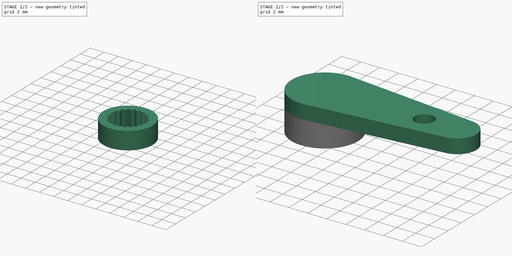
[diagram: build sequence overview — one tinted view per stage of 2, left to right]
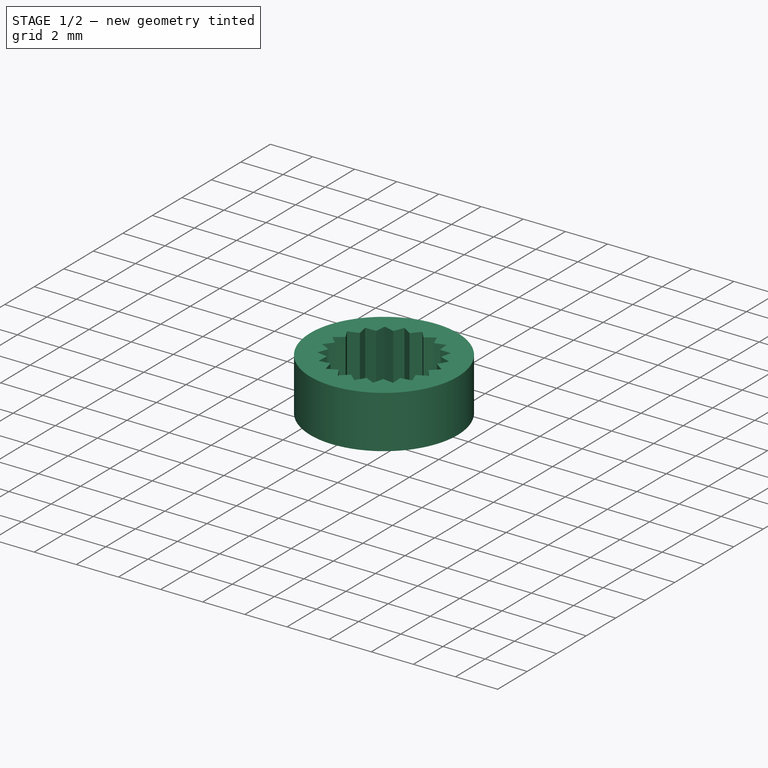
[diagram: stage 1 of 2 — iso view after this stage's code; geometry added in this stage tinted green]
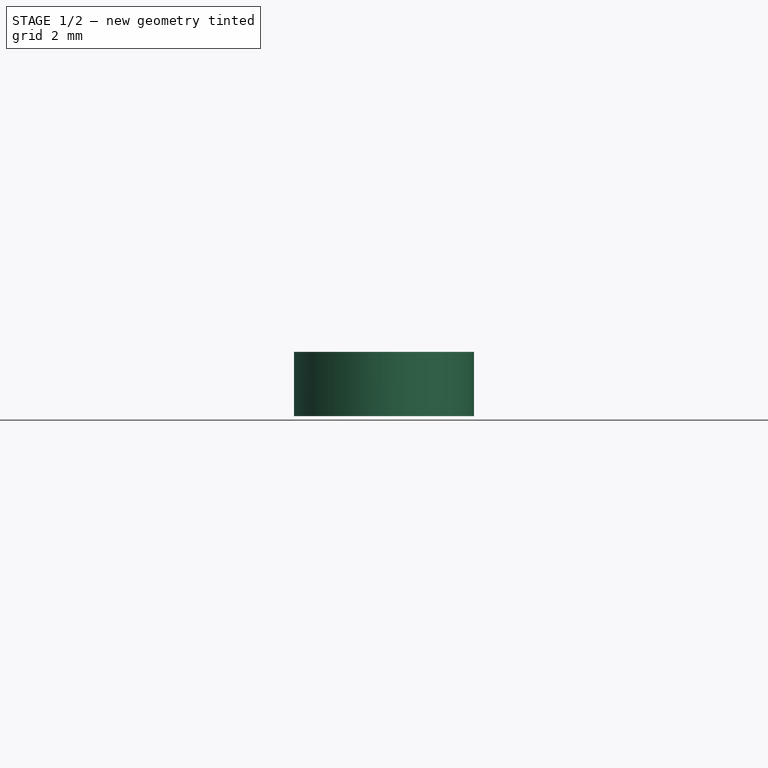
[diagram: stage 1 of 2 — front view after this stage's code; geometry added in this stage tinted green]
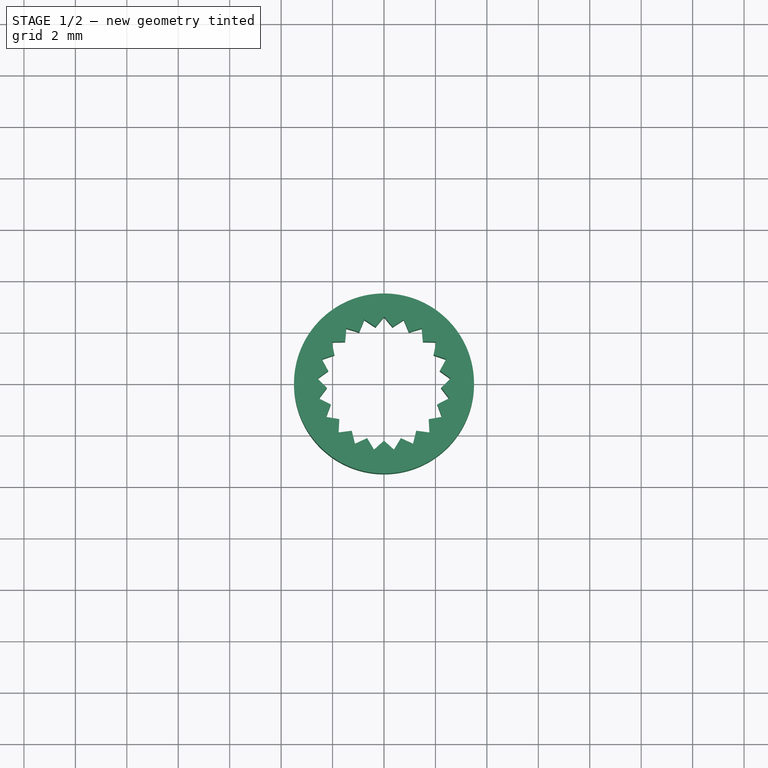
[diagram: stage 1 of 2 — top view after this stage's code; geometry added in this stage tinted green]
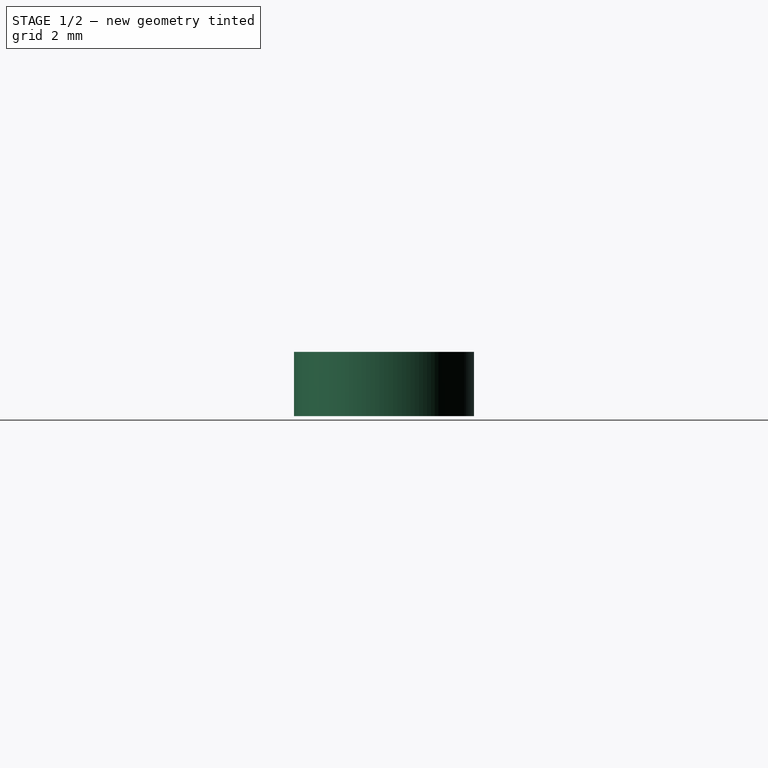
[diagram: stage 1 of 2 — right view after this stage's code; geometry added in this stage tinted green]
FCSTD DOCUMENT  (FreeCAD 0.19R)
Label: servo_horn
License: All rights reserved
LicenseURL: http://en.wikipedia.org/wiki/All_rights_reserved
objects: Sketcher::SketchObject×2, PartDesign::Pad×2, PartDesign::Body×1
note: 7 computed .brp shape members not serialized (recipe doc carries the construction recipe); baked Part::Feature solids carry a one-line shape summary decoded from their .brp

FEATURE [Sketcher::SketchObject] Sketch
  FullyConstrained = true
  MapMode = 5
  Support = -> [XY_Plane]
  sketch-geometry (45):
    g0: Circle CenterX=0 CenterY=0 CenterZ=0 NormalX=0 NormalY=0 NormalZ=1 AngleXU=0 Radius=3.5
    g1: Circle CenterX=0 CenterY=0 CenterZ=0 NormalX=0 NormalY=0 NormalZ=1 AngleXU=0 Radius=2.6
    g2: Circle CenterX=0 CenterY=0 CenterZ=0 NormalX=0 NormalY=0 NormalZ=1 AngleXU=0 Radius=2.225
    g3: LineSegment StartX=0.331619 StartY=2.20015 StartZ=0 EndX=0.766363 EndY=2.48449 EndZ=0
    g4: LineSegment StartX=0.766363 StartY=2.48449 StartZ=0 EndX=0.965391 EndY=2.00466 EndZ=0
    g5: LineSegment StartX=0.965391 StartY=2.00466 StartZ=0 EndX=1.46463 EndY=2.14822 EndZ=0
    g6: LineSegment StartX=1.46463 StartY=2.14822 StartZ=0 EndX=1.51338 EndY=1.63104 EndZ=0
    g7: LineSegment StartX=1.51338 StartY=1.63104 StartZ=0 EndX=2.03276 EndY=1.62107 EndZ=0
    g8: LineSegment StartX=2.03276 StartY=1.62107 StartZ=0 EndX=1.92691 EndY=1.1125 EndZ=0
    g9: LineSegment StartX=1.92691 StartY=1.1125 StartZ=0 EndX=2.42027 EndY=0.949887 EndZ=0
    g10: LineSegment StartX=2.42027 StartY=0.949887 StartZ=0 EndX=2.16921 EndY=0.495109 EndZ=0
    g11: LineSegment StartX=2.16921 StartY=0.495109 StartZ=0 EndX=2.59273 EndY=0.194298 EndZ=0
    g12: LineSegment StartX=2.59273 StartY=0.194298 StartZ=0 EndX=2.21878 EndY=-0.166274 EndZ=0
    g13: LineSegment StartX=2.21878 StartY=-0.166274 StartZ=0 EndX=2.53481 EndY=-0.578554 EndZ=0
    g14: LineSegment StartX=2.53481 StartY=-0.578554 StartZ=0 EndX=2.07119 EndY=-0.812884 EndZ=0
    g15: LineSegment StartX=2.07119 StartY=-0.812884 StartZ=0 EndX=2.25167 EndY=-1.3 EndZ=0
    g16: LineSegment StartX=2.25167 StartY=-1.3 StartZ=0 EndX=1.73958 EndY=-1.38726 EndZ=0
    g17: LineSegment StartX=1.73958 StartY=-1.38726 StartZ=0 EndX=1.76845 EndY=-1.90593 EndZ=0
    g18: LineSegment StartX=1.76845 StartY=-1.90593 StartZ=0 EndX=1.25339 EndY=-1.83838 EndZ=0
    g19: LineSegment StartX=1.25339 StartY=-1.83838 StartZ=0 EndX=1.1281 EndY=-2.34252 EndZ=0
    g20: LineSegment StartX=1.1281 StartY=-2.34252 StartZ=0 EndX=0.65583 EndY=-2.12615 EndZ=0
    g21: LineSegment StartX=0.65583 StartY=-2.12615 StartZ=0 EndX=0.38751 EndY=-2.57096 EndZ=0
    g22: LineSegment StartX=0.38751 StartY=-2.57096 StartZ=0 EndX=1e-16 EndY=-2.225 EndZ=0
    g23: LineSegment StartX=0 StartY=-2.225 StartZ=0 EndX=-0.38751 EndY=-2.57096 EndZ=0
    g24: LineSegment StartX=-0.38751 StartY=-2.57096 StartZ=0 EndX=-0.65583 EndY=-2.12615 EndZ=0
    g25: LineSegment StartX=-0.65583 StartY=-2.12615 StartZ=0 EndX=-1.1281 EndY=-2.34252 EndZ=0
    g26: LineSegment StartX=-1.1281 StartY=-2.34252 StartZ=0 EndX=-1.25339 EndY=-1.83838 EndZ=0
    g27: LineSegment StartX=-1.25339 StartY=-1.83838 StartZ=0 EndX=-1.76845 EndY=-1.90593 EndZ=0
    g28: LineSegment StartX=-1.76845 StartY=-1.90593 StartZ=0 EndX=-1.73958 EndY=-1.38726 EndZ=0
    g29: LineSegment StartX=-1.73958 StartY=-1.38726 StartZ=0 EndX=-2.25167 EndY=-1.3 EndZ=0
    g30: LineSegment StartX=-2.25167 StartY=-1.3 StartZ=0 EndX=-2.07119 EndY=-0.812884 EndZ=0
    g31: LineSegment StartX=-2.07119 StartY=-0.812884 StartZ=0 EndX=-2.53481 EndY=-0.578554 EndZ=0
    g32: LineSegment StartX=-2.53481 StartY=-0.578554 StartZ=0 EndX=-2.21878 EndY=-0.166274 EndZ=0
    g33: LineSegment StartX=-2.21878 StartY=-0.166274 StartZ=0 EndX=-2.59273 EndY=0.194298 EndZ=0
    g34: LineSegment StartX=-2.59273 StartY=0.194298 StartZ=0 EndX=-2.16921 EndY=0.495109 EndZ=0
    g35: LineSegment StartX=-2.16921 StartY=0.495109 StartZ=0 EndX=-2.42027 EndY=0.949887 EndZ=0
    g36: LineSegment StartX=-2.42027 StartY=0.949887 StartZ=0 EndX=-1.92691 EndY=1.1125 EndZ=0
    g37: LineSegment StartX=-1.92691 StartY=1.1125 StartZ=0 EndX=-2.03276 EndY=1.62107 EndZ=0
    g38: LineSegment StartX=-2.03276 StartY=1.62107 StartZ=0 EndX=-1.51338 EndY=1.63104 EndZ=0
    g39: LineSegment StartX=-1.51338 StartY=1.63104 StartZ=0 EndX=-1.46463 EndY=2.14822 EndZ=0
    g40: LineSegment StartX=-1.46463 StartY=2.14822 StartZ=0 EndX=-0.965391 EndY=2.00466 EndZ=0
    g41: LineSegment StartX=-0.965391 StartY=2.00466 StartZ=0 EndX=-0.766363 EndY=2.48449 EndZ=0
    g42: LineSegment StartX=-0.766363 StartY=2.48449 StartZ=0 EndX=-0.331619 EndY=2.20015 EndZ=0
    g43: LineSegment StartX=-0.331619 StartY=2.20015 StartZ=0 EndX=0 EndY=2.6 EndZ=0
    g44: LineSegment StartX=0 StartY=2.6 StartZ=0 EndX=0.331619 EndY=2.20015 EndZ=0
  constraints (132):
    c: Coincident(g0,g-1)
    c: Diameter(g0) = 7
    c: Coincident(g1,g0)
    c: Coincident(g2,g0)
    c: Diameter(g1) = 5.2
    c: Diameter(g2) = 4.45
    c: PointOnObject(g3,g2)
    c: PointOnObject(g3,g1)
    c: Coincident(g3,g4)
    c: PointOnObject(g4,g2)
    c: Coincident(g4,g5)
    c: PointOnObject(g5,g1)
    c: Coincident(g5,g6)
    c: PointOnObject(g6,g2)
    c: Coincident(g6,g7)
    c: PointOnObject(g7,g1)
    c: Coincident(g7,g8)
    c: PointOnObject(g8,g2)
    c: Coincident(g8,g9)
    c: PointOnObject(g9,g1)
    c: Coincident(g9,g10)
    c: PointOnObject(g10,g2)
    c: Coincident(g10,g11)
    c: PointOnObject(g11,g1)
    c: Coincident(g11,g12)
    c: PointOnObject(g12,g2)
    c: Coincident(g12,g13)
    c: PointOnObject(g13,g1)
    c: Coincident(g13,g14)
    c: PointOnObject(g14,g2)
    c: Coincident(g14,g15)
    c: PointOnObject(g15,g1)
    c: Coincident(g15,g16)
    c: PointOnObject(g16,g2)
    c: Coincident(g16,g17)
    c: PointOnObject(g17,g1)
    c: Coincident(g17,g18)
    c: PointOnObject(g18,g2)
    c: Coincident(g18,g19)
    c: PointOnObject(g19,g1)
    c: Coincident(g19,g20)
    c: PointOnObject(g20,g2)
    c: Coincident(g20,g21)
    c: PointOnObject(g21,g1)
    c: Coincident(g21,g22)
    c: PointOnObject(g22,g2)
    c: Coincident(g22,g23)
    c: PointOnObject(g23,g1)
    c: Coincident(g23,g24)
    c: PointOnObject(g24,g2)
    c: Coincident(g24,g25)
    c: PointOnObject(g25,g1)
    c: Coincident(g25,g26)
    c: PointOnObject(g26,g2)
    c: Coincident(g26,g27)
    c: PointOnObject(g27,g1)
    c: Coincident(g27,g28)
    c: PointOnObject(g28,g2)
    c: Coincident(g28,g29)
    c: PointOnObject(g29,g1)
    c: Coincident(g29,g30)
    c: PointOnObject(g30,g2)
    c: Coincident(g30,g31)
    c: PointOnObject(g31,g1)
    c: Coincident(g31,g32)
    c: PointOnObject(g32,g2)
    c: Coincident(g32,g33)
    c: PointOnObject(g33,g1)
    c: Coincident(g33,g34)
    c: PointOnObject(g34,g2)
    c: Coincident(g34,g35)
    c: PointOnObject(g35,g1)
    c: Coincident(g35,g36)
    c: PointOnObject(g36,g2)
    c: Coincident(g36,g37)
    c: PointOnObject(g37,g1)
    c: Coincident(g37,g38)
    c: PointOnObject(g38,g2)
    c: Coincident(g38,g39)
    c: PointOnObject(g39,g1)
    c: Coincident(g39,g40)
    c: PointOnObject(g40,g2)
    c: Coincident(g40,g41)
    c: PointOnObject(g41,g1)
    c: Coincident(g41,g42)
    c: PointOnObject(g42,g2)
    c: Coincident(g42,g43)
    c: PointOnObject(g43,g1)
    c: Coincident(g43,g44)
    c: Coincident(g44,g3)
    c: Equal(g3,g4)
    c: Equal(g4,g5)
    c: Equal(g5,g6)
    c: Equal(g6,g7)
    c: Equal(g7,g8)
    c: Equal(g8,g9)
    c: Equal(g9,g10)
    c: Equal(g10,g11)
    c: Equal(g11,g12)
    c: Equal(g12,g13)
    c: Equal(g13,g14)
    c: Equal(g14,g19)
    c: Equal(g19,g20)
    c: Equal(g20,g21)
    c: Equal(g21,g22)
    c: Equal(g22,g23)
    c: Equal(g23,g24)
    c: Equal(g24,g25)
    c: Equal(g25,g26)
    c: Equal(g26,g27)
    c: Equal(g27,g28)
    c: Equal(g28,g29)
    c: Equal(g29,g30)
    c: Equal(g30,g31)
    c: Equal(g31,g32)
    c: Equal(g32,g33)
    c: Equal(g33,g34)
    c: Equal(g34,g35)
    c: Equal(g35,g36)
    c: Equal(g36,g37)
    c: Equal(g37,g38)
    c: Equal(g38,g39)
    c: Equal(g39,g40)
    c: Equal(g40,g41)
    c: Equal(g41,g42)
    c: Equal(g42,g43)
    c: Equal(g43,g44)
    c: Equal(g44,g18)
    c: Equal(g18,g17)
    c: Equal(g17,g16)
    c: Equal(g16,g15)
    c: PointOnObject(g43,g-2)
FEATURE [PartDesign::Pad] Pad
  Direction = (1,1,1)
  Length = 2.5
  Length2 = 100
  Profile = -> Sketch
  Type = 0
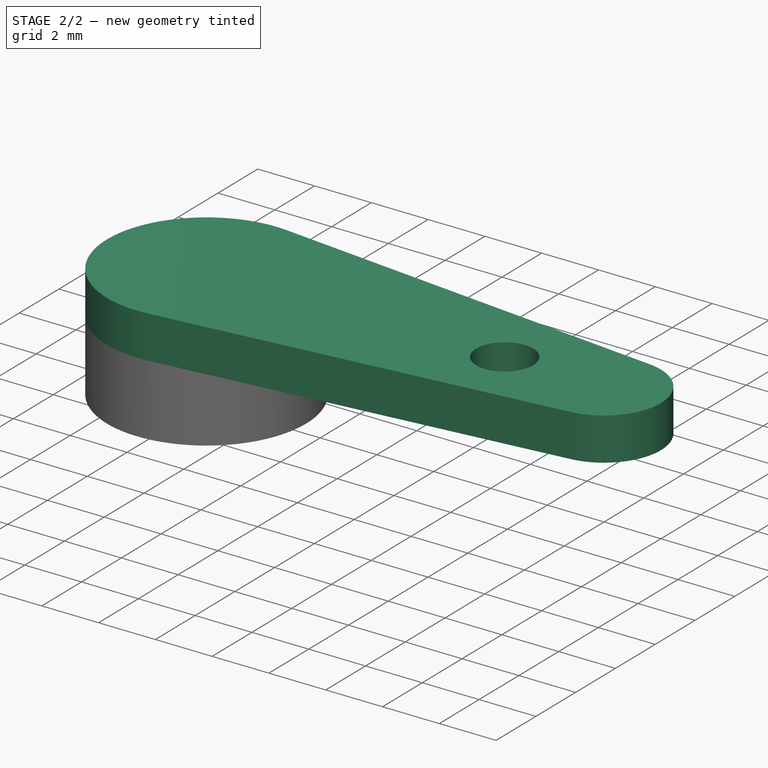
[diagram: stage 2 of 2 — iso view after this stage's code; geometry added in this stage tinted green]
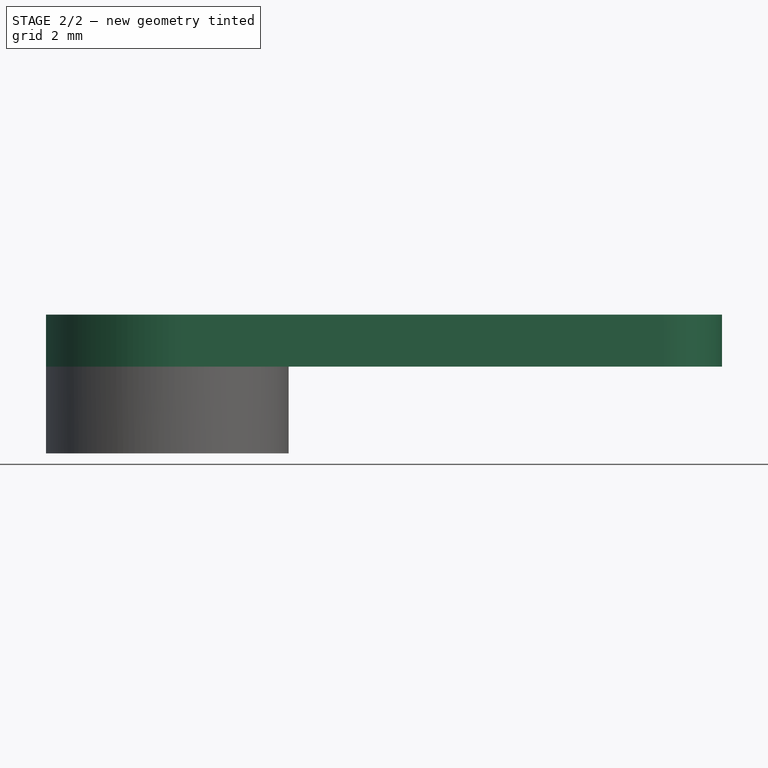
[diagram: stage 2 of 2 — front view after this stage's code; geometry added in this stage tinted green]
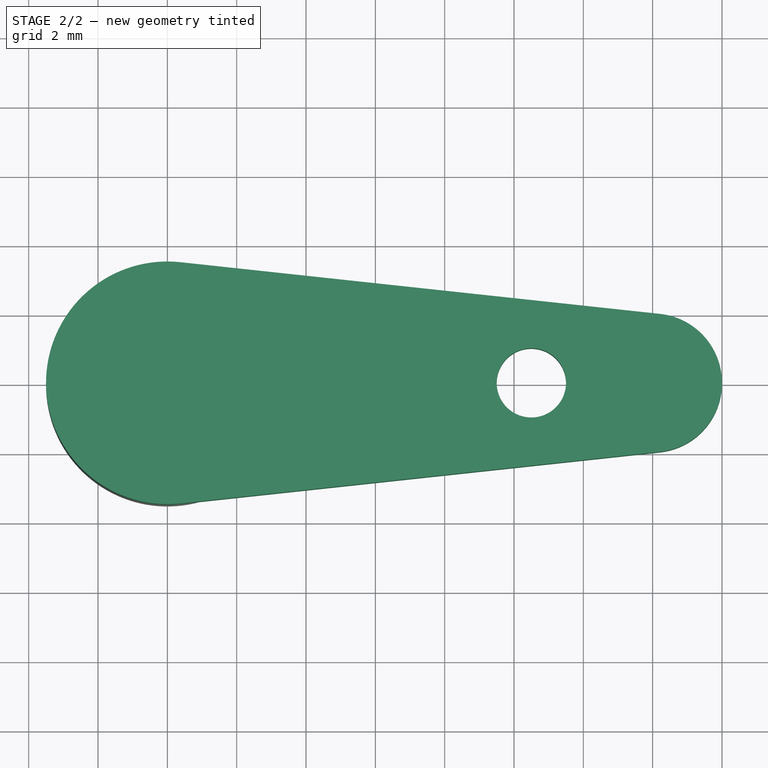
[diagram: stage 2 of 2 — top view after this stage's code; geometry added in this stage tinted green]
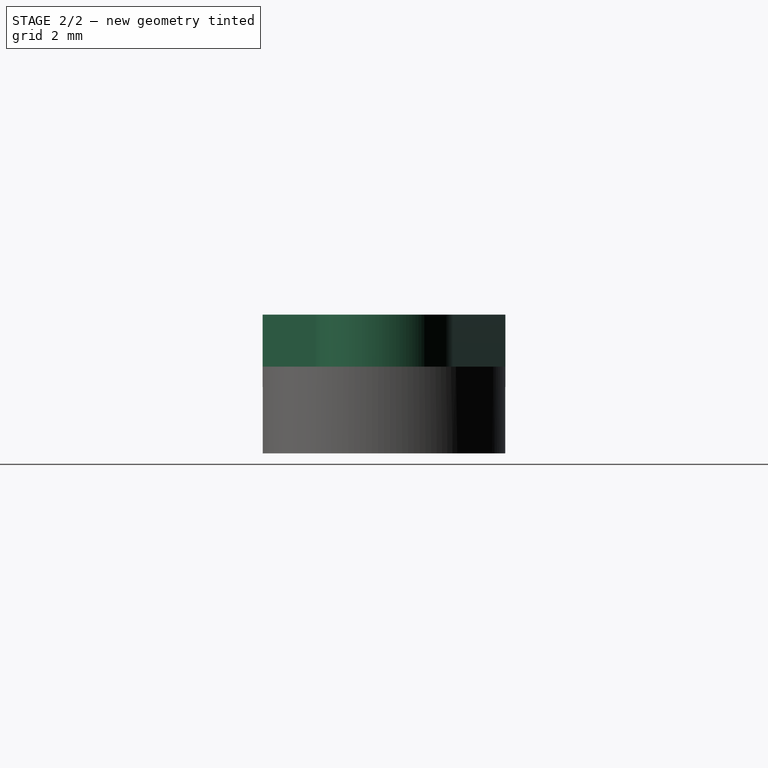
[diagram: stage 2 of 2 — right view after this stage's code; geometry added in this stage tinted green]
FEATURE [Sketcher::SketchObject] Sketch001
  FullyConstrained = true
  MapMode = 5
  Placement = pos=(0,0,2.5) rot=(0,0,1;0rad)
  Support = -> [Pad]
  sketch-geometry (5):
    g0: ArcOfCircle CenterX=0 CenterY=0 CenterZ=0 NormalX=0 NormalY=0 NormalZ=1 AngleXU=0 Radius=3.5 StartAngle=1.46345 EndAngle=4.81974
    g1: ArcOfCircle CenterX=14 CenterY=0 CenterZ=0 NormalX=0 NormalY=0 NormalZ=1 AngleXU=0 Radius=2 StartAngle=4.81974 EndAngle=7.74663
    g2: LineSegment StartX=0.375 StartY=3.47985 StartZ=0 EndX=14.2143 EndY=1.98849 EndZ=0
    g3: LineSegment StartX=0.375 StartY=-3.47985 StartZ=0 EndX=14.2143 EndY=-1.98849 EndZ=0
    g4: Circle CenterX=10.5 CenterY=0 CenterZ=0 NormalX=0 NormalY=0 NormalZ=1 AngleXU=0 Radius=1
  constraints (12):
    c: Coincident(g0,g-1)
    c: Diameter(g0) = 7
    c: PointOnObject(g1,g-1)
    c: Diameter(g1) = 4
    c: DistanceX(g0,g1) = 14
    c: Tangent(g0,g2) = 1.5708
    c: Tangent(g0,g3) = -1.5708
    c: Tangent(g1,g3) = -1.5708
    c: Tangent(g1,g2) = 1.5708
    c: PointOnObject(g4,g-1)
    c: Diameter(g4) = 2
    c: DistanceX(g0,g4) = 10.5
FEATURE [PartDesign::Pad] Pad001
  BaseFeature = -> Pad
  Direction = (1,1,1)
  Length = 1.5
  Length2 = 100
  Profile = -> Sketch001
  Type = 0
FEATURE [PartDesign::Body] Body
  Group = -> [Sketch,Pad,Sketch001,Pad001]
  Origin = -> Origin
  Tip = -> Pad001
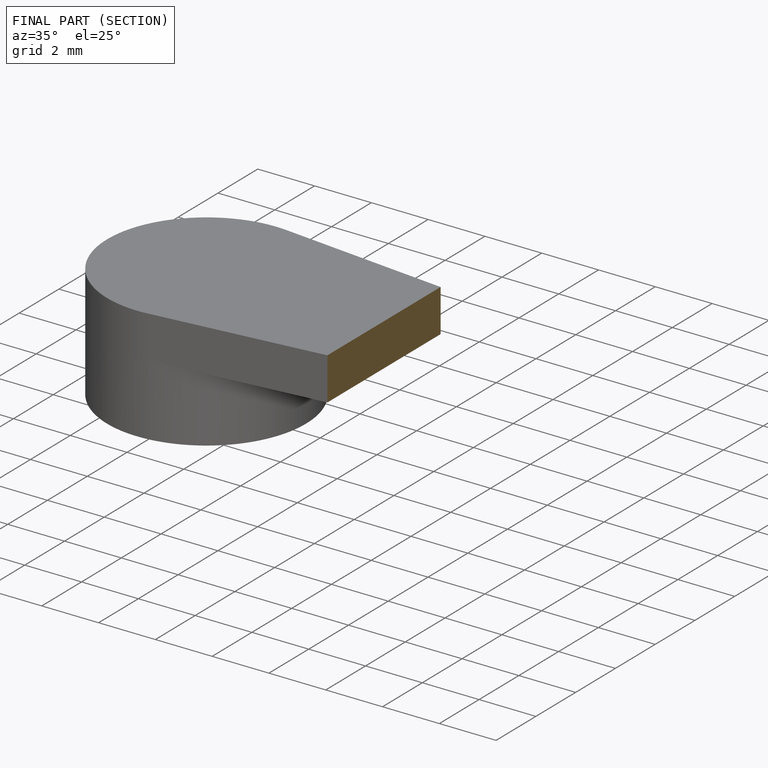
[diagram: finished part — half-section view (interior)]
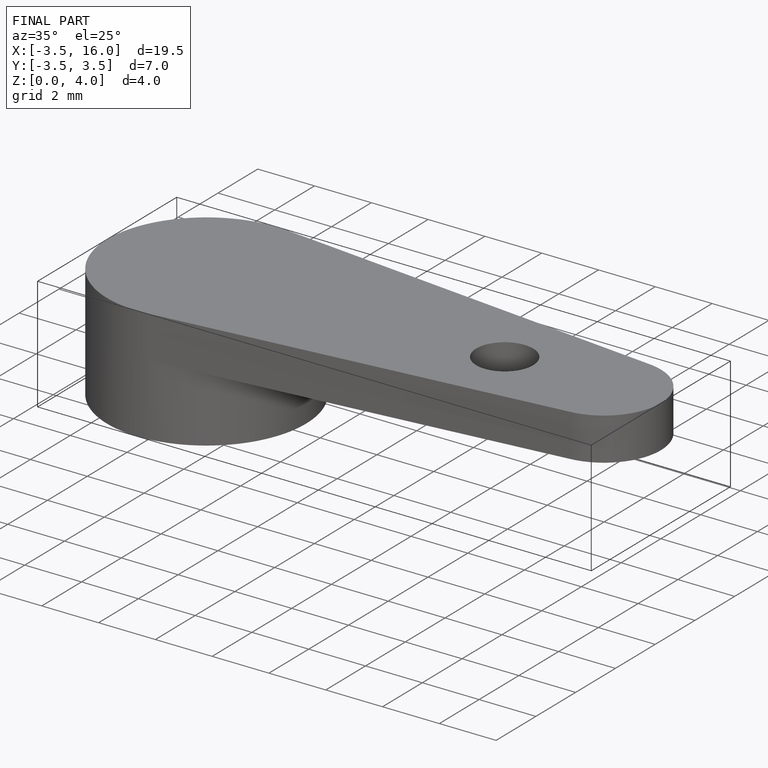
[diagram: finished part — iso view with bounding-box wireframe]
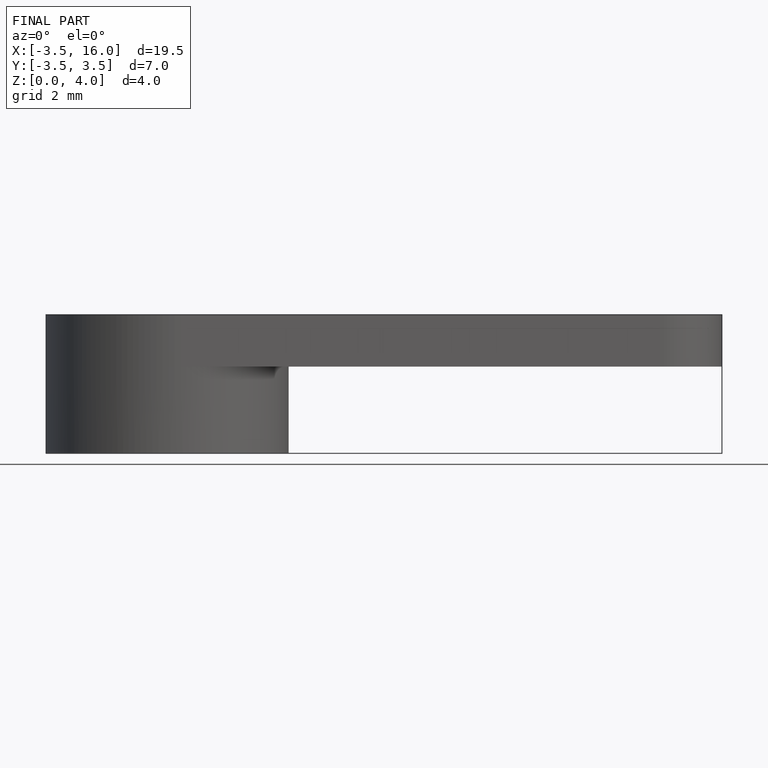
[diagram: finished part — front view with bounding-box wireframe]
